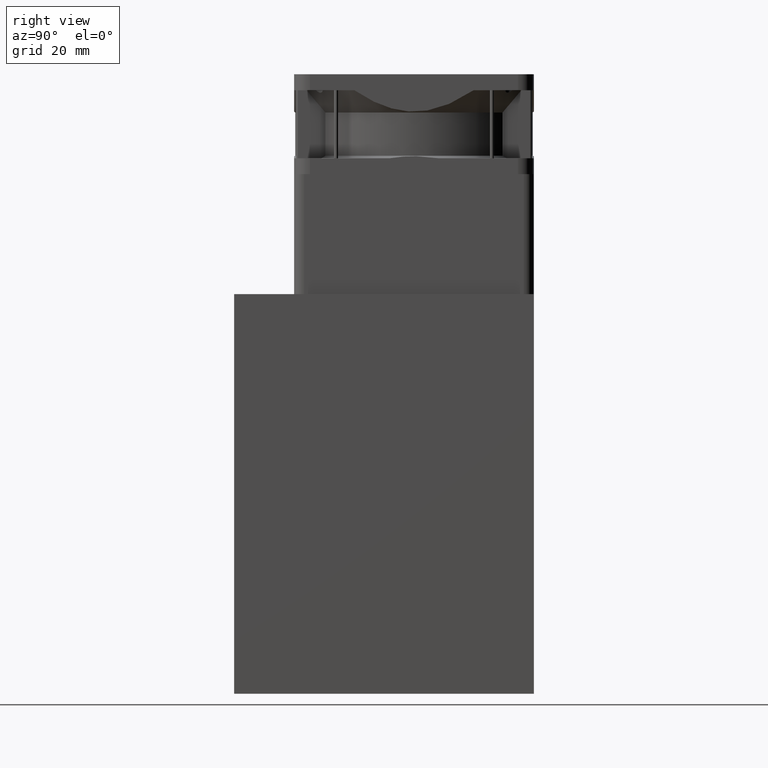
[diagram: clean part render]
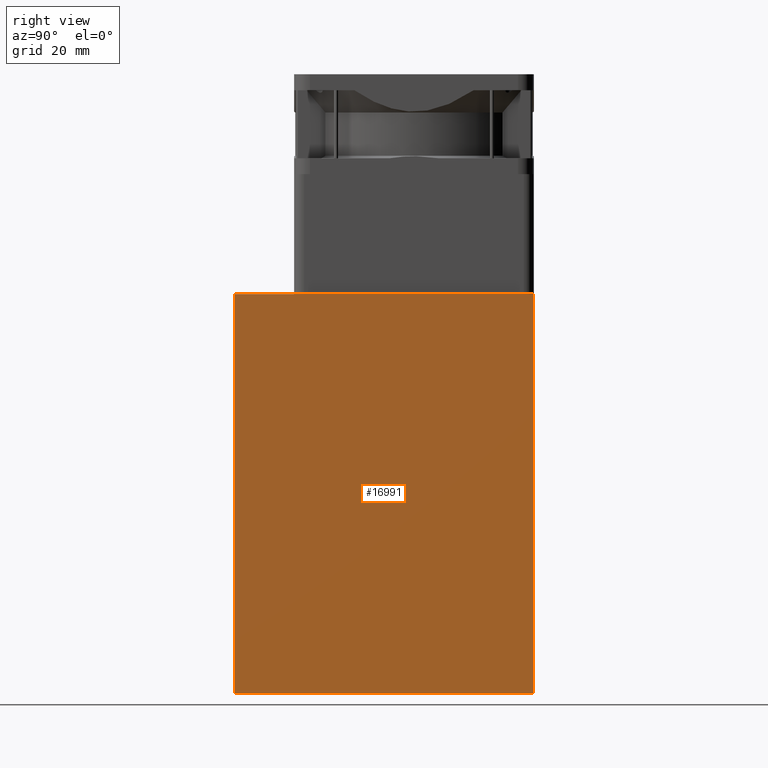
[diagram: same view with one face highlighted and labeled with its STEP entity id]
A machine part, right view. The second image highlights one B-rep face of the part: STEP entity #16991.
In plain terms, the highlighted planar face has unit normal (-1, -0, 0).
Its self-contained STEP definition (entity closure, byte-faithful):
#86 = VERTEX_POINT ( 'NONE', #28043 ) ;
#1241 = CARTESIAN_POINT ( 'NONE',  ( 30.78966117313851569, 37.49999999999983658, 100.0000000000000000 ) ) ;
#3446 = CARTESIAN_POINT ( 'NONE',  ( 30.78966117313851925, 4.336808689942017736E-15, 0.000000000000000000 ) ) ;
#4365 = ORIENTED_EDGE ( 'NONE', *, *, #21006, .T. ) ;
#5242 = VERTEX_POINT ( 'NONE', #24624 ) ;
#6351 = LINE ( 'NONE', #3446, #27921 ) ;
#8589 = CARTESIAN_POINT ( 'NONE',  ( 30.78966117313852635, -37.49999999999983658, 0.000000000000000000 ) ) ;
#9280 = DIRECTION ( 'NONE',  ( 1.387778780781451592E-16, -1.000000000000000000, 0.000000000000000000 ) ) ;
#9840 = DIRECTION ( 'NONE',  ( -0.000000000000000000, -0.000000000000000000, -1.000000000000000000 ) ) ;
#12326 = DIRECTION ( 'NONE',  ( -1.000000000000000000, -1.387778780781451592E-16, 0.000000000000000000 ) ) ;
#12382 = VERTEX_POINT ( 'NONE', #8589 ) ;
#13268 = DIRECTION ( 'NONE',  ( -1.387778780781451592E-16, 1.000000000000000000, 0.000000000000000000 ) ) ;
#14541 = AXIS2_PLACEMENT_3D ( 'NONE', #29443, #12326, #9280 ) ;
#16991 = ADVANCED_FACE ( 'NONE', ( #31373 ), #19601, .F. ) ;
#17154 = DIRECTION ( 'NONE',  ( -1.387778780781451592E-16, 1.000000000000000000, 0.000000000000000000 ) ) ;
#17164 = EDGE_CURVE ( 'NONE', #12382, #5242, #6351, .T. ) ;
#18178 = LINE ( 'NONE', #1241, #26269 ) ;
#18224 = VECTOR ( 'NONE', #17154, 1000.000000000000000 ) ;
#19226 = CARTESIAN_POINT ( 'NONE',  ( 30.78966117313852635, -37.49999999999983658, 100.0000000000000000 ) ) ;
#19377 = LINE ( 'NONE', #29221, #23993 ) ;
#19601 = PLANE ( 'NONE',  #14541 ) ;
#21006 = EDGE_CURVE ( 'NONE', #24950, #12382, #19377, .T. ) ;
#21241 = ORIENTED_EDGE ( 'NONE', *, *, #17164, .T. ) ;
#23518 = DIRECTION ( 'NONE',  ( -0.000000000000000000, -0.000000000000000000, -1.000000000000000000 ) ) ;
#23993 = VECTOR ( 'NONE', #9840, 1000.000000000000000 ) ;
#24113 = ORIENTED_EDGE ( 'NONE', *, *, #29950, .F. ) ;
#24624 = CARTESIAN_POINT ( 'NONE',  ( 30.78966117313851569, 37.49999999999983658, 0.000000000000000000 ) ) ;
#24820 = ORIENTED_EDGE ( 'NONE', *, *, #26719, .F. ) ;
#24950 = VERTEX_POINT ( 'NONE', #19226 ) ;
#26269 = VECTOR ( 'NONE', #23518, 1000.000000000000000 ) ;
#26719 = EDGE_CURVE ( 'NONE', #86, #5242, #18178, .T. ) ;
#26790 = EDGE_LOOP ( 'NONE', ( #21241, #24820, #24113, #4365 ) ) ;
#26995 = LINE ( 'NONE', #29270, #18224 ) ;
#27921 = VECTOR ( 'NONE', #13268, 1000.000000000000000 ) ;
#28043 = CARTESIAN_POINT ( 'NONE',  ( 30.78966117313851569, 37.49999999999983658, 100.0000000000000000 ) ) ;
#29221 = CARTESIAN_POINT ( 'NONE',  ( 30.78966117313852635, -37.49999999999983658, 100.0000000000000000 ) ) ;
#29270 = CARTESIAN_POINT ( 'NONE',  ( 30.78966117313851925, 4.336808689942017736E-15, 100.0000000000000000 ) ) ;
#29443 = CARTESIAN_POINT ( 'NONE',  ( 30.78966117313851925, 4.336808689942017736E-15, 100.0000000000000000 ) ) ;
#29950 = EDGE_CURVE ( 'NONE', #24950, #86, #26995, .T. ) ;
#31373 = FACE_OUTER_BOUND ( 'NONE', #26790, .T. ) ;